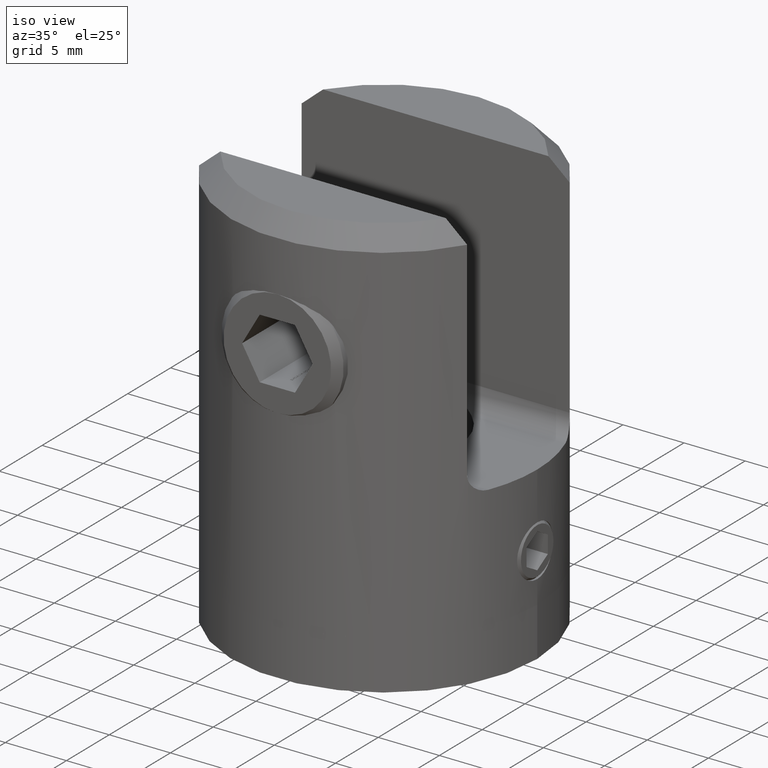
[diagram: clean part render]
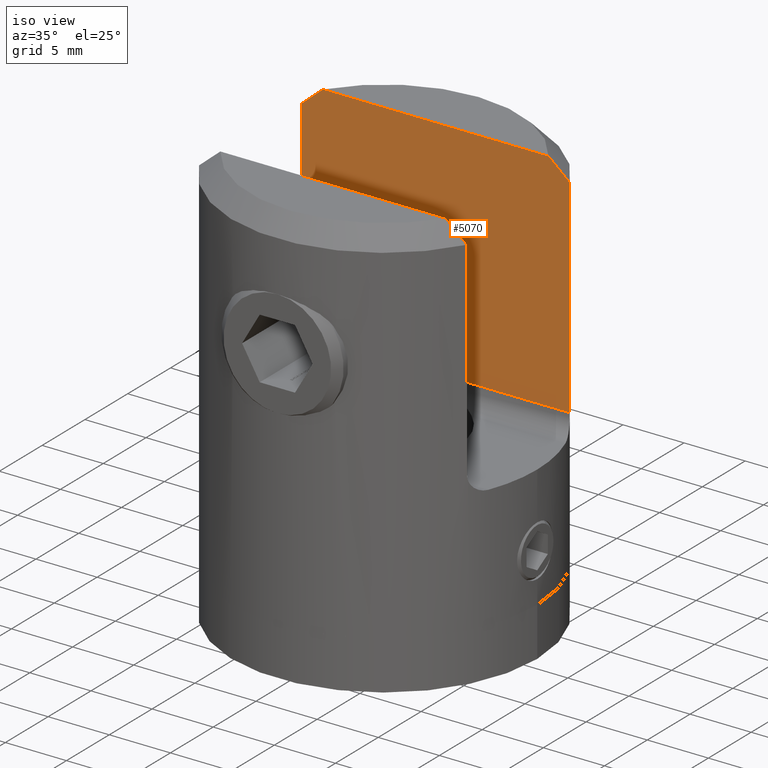
[diagram: same view with one face highlighted and labeled with its STEP entity id]
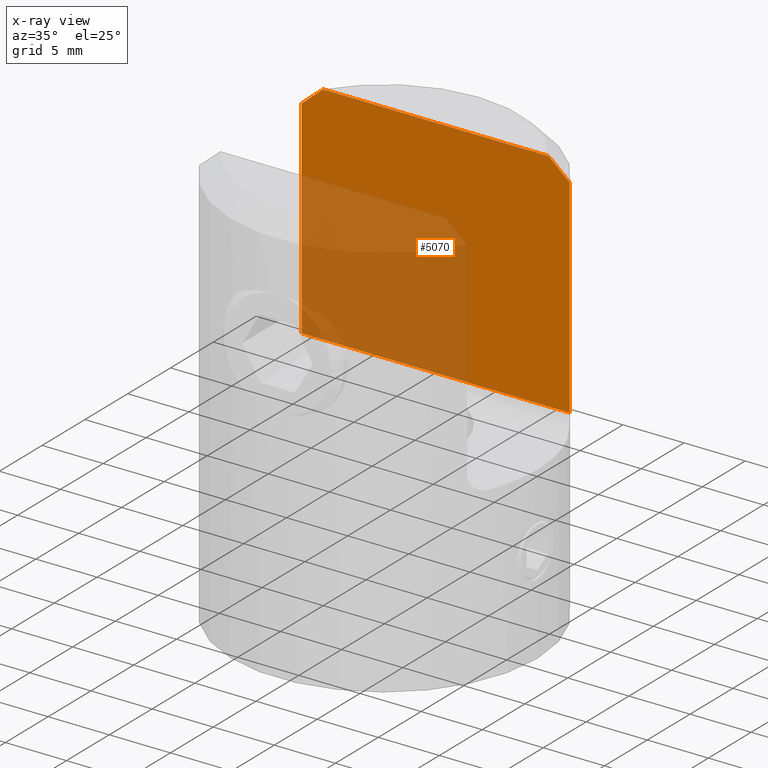
[diagram: x-ray of the same camera — body ghosted, the highlighted face saturated]
A machine part, iso view. The second image highlights one B-rep face of the part: STEP entity #5070.
The next image is the same camera in x-ray: the body ghosted, the highlighted face saturated — about 39% of this face is hidden behind the body in this view.
In plain terms, the highlighted planar face has unit normal (0, 1, 0).
Its self-contained STEP definition (entity closure, byte-faithful):
#217 = VECTOR ( 'NONE', #5017, 1000.000000000000000 ) ;
#615 = CARTESIAN_POINT ( 'NONE',  ( 9.807566054437094394, 6.000000000000000000, 14.50715534029824738 ) ) ;
#861 = AXIS2_PLACEMENT_3D ( 'NONE', #16113, #21724, #1858 ) ;
#1766 = CARTESIAN_POINT ( 'NONE',  ( -10.96585609973065623, 6.000000000000000000, -42.73084924772409465 ) ) ;
#1858 = DIRECTION ( 'NONE',  ( 0.000000000000000000, -0.000000000000000000, 1.000000000000000000 ) ) ;
#2451 = LINE ( 'NONE', #21659, #28439 ) ;
#2573 = CARTESIAN_POINT ( 'NONE',  ( -9.219544457292899509, 6.000000000000000000, 15.00000000000000000 ) ) ;
#2672 = EDGE_CURVE ( 'NONE', #7504, #11992, #12226, .T. ) ;
#2890 = ORIENTED_EDGE ( 'NONE', *, *, #2672, .T. ) ;
#3317 = VERTEX_POINT ( 'NONE', #21221 ) ;
#4638 = PLANE ( 'NONE',  #861 ) ;
#5017 = DIRECTION ( 'NONE',  ( 1.000000000000000000, 0.000000000000000000, -0.000000000000000000 ) ) ;
#5070 = ADVANCED_FACE ( 'NONE', ( #22634 ), #4638, .F. ) ;
#5428 = CARTESIAN_POINT ( 'NONE',  ( -10.96585609973065623, 6.000000000000000000, -3.499999999999996003 ) ) ;
#5583 = EDGE_CURVE ( 'NONE', #16596, #5634, #29710, .T. ) ;
#5634 = VERTEX_POINT ( 'NONE', #25634 ) ;
#7102 = CARTESIAN_POINT ( 'NONE',  ( 10.96585609973065623, 6.000000000000000000, -3.499999999999996003 ) ) ;
#7188 = ORIENTED_EDGE ( 'NONE', *, *, #14952, .T. ) ;
#7504 = VERTEX_POINT ( 'NONE', #21057 ) ;
#7796 = CARTESIAN_POINT ( 'NONE',  ( -10.96585609973065623, 6.000000000000000000, -3.499999999999996003 ) ) ;
#8026 = ORIENTED_EDGE ( 'NONE', *, *, #21204, .T. ) ;
#8384 = EDGE_CURVE ( 'NONE', #3317, #12373, #2451, .T. ) ;
#9231 = DIRECTION ( 'NONE',  ( -0.000000000000000000, -0.000000000000000000, 1.000000000000000000 ) ) ;
#9865 = CARTESIAN_POINT ( 'NONE',  ( -9.807903379770445795, 6.000000000000000000, 14.50687261430666375 ) ) ;
#10624 = CARTESIAN_POINT ( 'NONE',  ( 10.38914799595922922, 6.000000000000000000, 14.00592784620048548 ) ) ;
#11130 = VECTOR ( 'NONE', #31867, 1000.000000000000000 ) ;
#11992 = VERTEX_POINT ( 'NONE', #29673 ) ;
#12226 = B_SPLINE_CURVE_WITH_KNOTS ( 'NONE', 3,
 ( #28102, #10624, #615, #28219 ),
 .UNSPECIFIED., .F., .F.,
 ( 4, 4 ),
 ( 0.01809640099093061047, 0.02039683557023025395 ),
 .UNSPECIFIED. ) ;
#12373 = VERTEX_POINT ( 'NONE', #7102 ) ;
#12824 = LINE ( 'NONE', #7796, #217 ) ;
#13597 = B_SPLINE_CURVE_WITH_KNOTS ( 'NONE', 3,
 ( #2573, #9865, #14926, #30096 ),
 .UNSPECIFIED., .F., .F.,
 ( 4, 4 ),
 ( 0.04180594926930952804, 0.04412584257624781181 ),
 .UNSPECIFIED. ) ;
#14926 = CARTESIAN_POINT ( 'NONE',  ( -10.38914765861838596, 6.000000000000000000, 14.00592814213897874 ) ) ;
#14952 = EDGE_CURVE ( 'NONE', #16596, #3317, #12824, .T. ) ;
#15604 = ORIENTED_EDGE ( 'NONE', *, *, #26941, .T. ) ;
#16113 = CARTESIAN_POINT ( 'NONE',  ( -10.96585609973065623, 6.000000000000000000, -42.73084924772409465 ) ) ;
#16493 = VECTOR ( 'NONE', #9231, 1000.000000000000000 ) ;
#16596 = VERTEX_POINT ( 'NONE', #5428 ) ;
#17584 = EDGE_LOOP ( 'NONE', ( #17969, #7188, #28089, #15604, #2890, #8026, #24861 ) ) ;
#17969 = ORIENTED_EDGE ( 'NONE', *, *, #5583, .F. ) ;
#18850 = CARTESIAN_POINT ( 'NONE',  ( -10.96585609973065623, 6.000000000000000000, 15.00000000000000000 ) ) ;
#21057 = CARTESIAN_POINT ( 'NONE',  ( 10.96585609973065623, 6.000000000000000000, 13.50000000000000533 ) ) ;
#21204 = EDGE_CURVE ( 'NONE', #11992, #22425, #24105, .T. ) ;
#21221 = CARTESIAN_POINT ( 'NONE',  ( 0.000000000000000000, 6.000000000000000000, -3.499999999999999556 ) ) ;
#21659 = CARTESIAN_POINT ( 'NONE',  ( -10.96585609973065623, 6.000000000000000000, -3.499999999999996003 ) ) ;
#21724 = DIRECTION ( 'NONE',  ( -0.000000000000000000, 1.000000000000000000, 0.000000000000000000 ) ) ;
#22425 = VERTEX_POINT ( 'NONE', #25227 ) ;
#22634 = FACE_OUTER_BOUND ( 'NONE', #17584, .T. ) ;
#24105 = LINE ( 'NONE', #18850, #11130 ) ;
#24285 = CARTESIAN_POINT ( 'NONE',  ( 10.96585609973065623, 6.000000000000000000, -42.73084924772409465 ) ) ;
#24861 = ORIENTED_EDGE ( 'NONE', *, *, #28435, .T. ) ;
#25227 = CARTESIAN_POINT ( 'NONE',  ( -9.219544457292899509, 6.000000000000000000, 15.00000000000000000 ) ) ;
#25634 = CARTESIAN_POINT ( 'NONE',  ( -10.96585609973065623, 6.000000000000000000, 13.50000000000000711 ) ) ;
#26935 = VECTOR ( 'NONE', #27618, 1000.000000000000000 ) ;
#26941 = EDGE_CURVE ( 'NONE', #12373, #7504, #27115, .T. ) ;
#27115 = LINE ( 'NONE', #24285, #16493 ) ;
#27618 = DIRECTION ( 'NONE',  ( -0.000000000000000000, -0.000000000000000000, 1.000000000000000000 ) ) ;
#28089 = ORIENTED_EDGE ( 'NONE', *, *, #8384, .T. ) ;
#28102 = CARTESIAN_POINT ( 'NONE',  ( 10.96585609973065623, 6.000000000000000000, 13.50000000000000533 ) ) ;
#28219 = CARTESIAN_POINT ( 'NONE',  ( 9.219544457292899509, 6.000000000000000000, 15.00000000000000000 ) ) ;
#28435 = EDGE_CURVE ( 'NONE', #22425, #5634, #13597, .T. ) ;
#28439 = VECTOR ( 'NONE', #32014, 1000.000000000000000 ) ;
#29673 = CARTESIAN_POINT ( 'NONE',  ( 9.219544457292899509, 6.000000000000000000, 15.00000000000000000 ) ) ;
#29710 = LINE ( 'NONE', #1766, #26935 ) ;
#30096 = CARTESIAN_POINT ( 'NONE',  ( -10.96585609973065623, 6.000000000000000000, 13.50000000000000711 ) ) ;
#31867 = DIRECTION ( 'NONE',  ( -1.000000000000000000, -0.000000000000000000, -0.000000000000000000 ) ) ;
#32014 = DIRECTION ( 'NONE',  ( 1.000000000000000000, 0.000000000000000000, -0.000000000000000000 ) ) ;